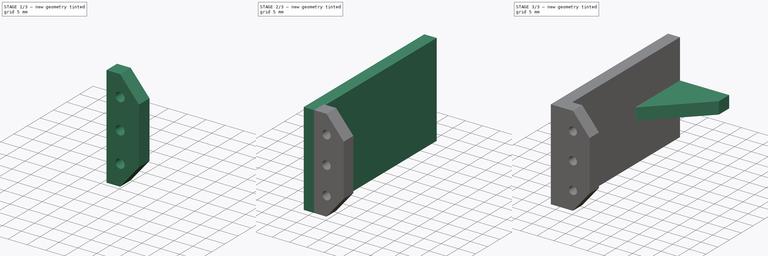
[diagram: build sequence overview — one tinted view per stage of 3, left to right]
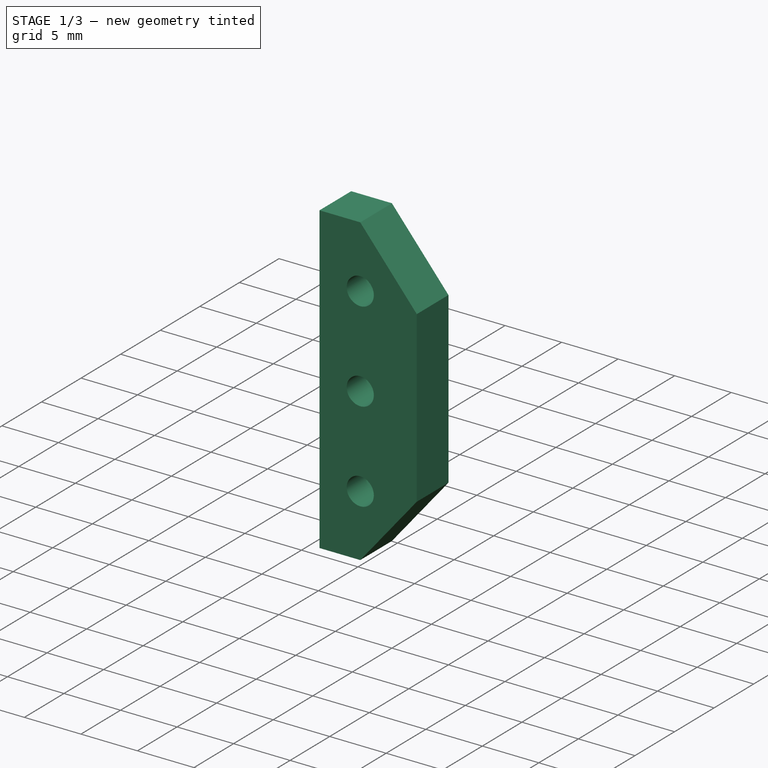
[diagram: stage 1 of 3 — iso view after this stage's code; geometry added in this stage tinted green]
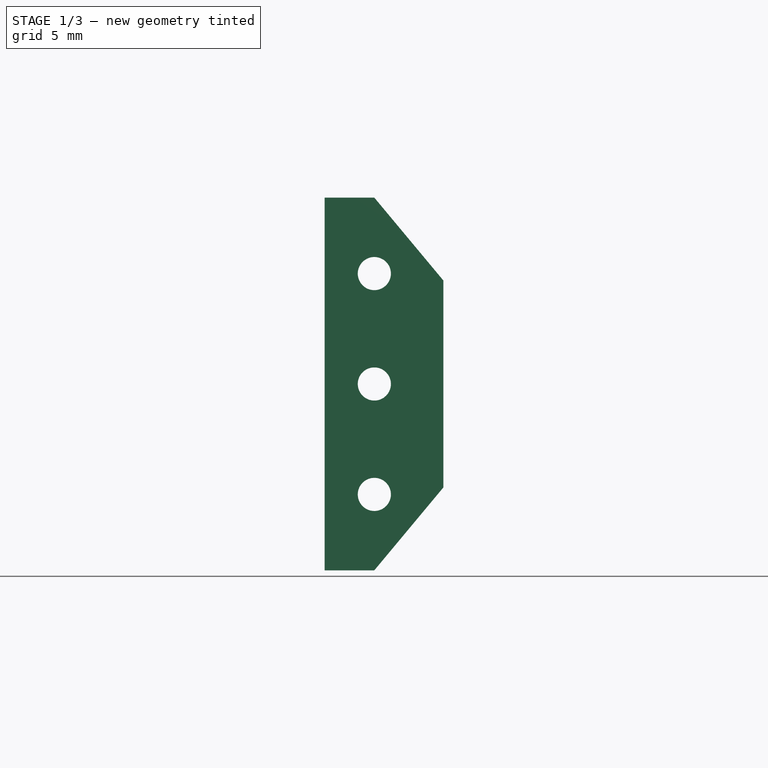
[diagram: stage 1 of 3 — front view after this stage's code; geometry added in this stage tinted green]
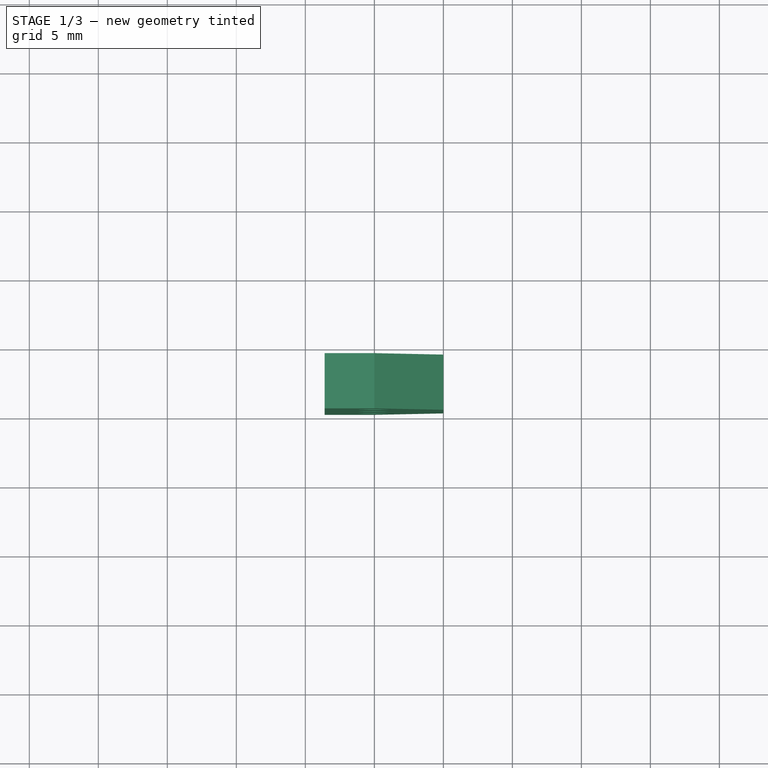
[diagram: stage 1 of 3 — top view after this stage's code; geometry added in this stage tinted green]
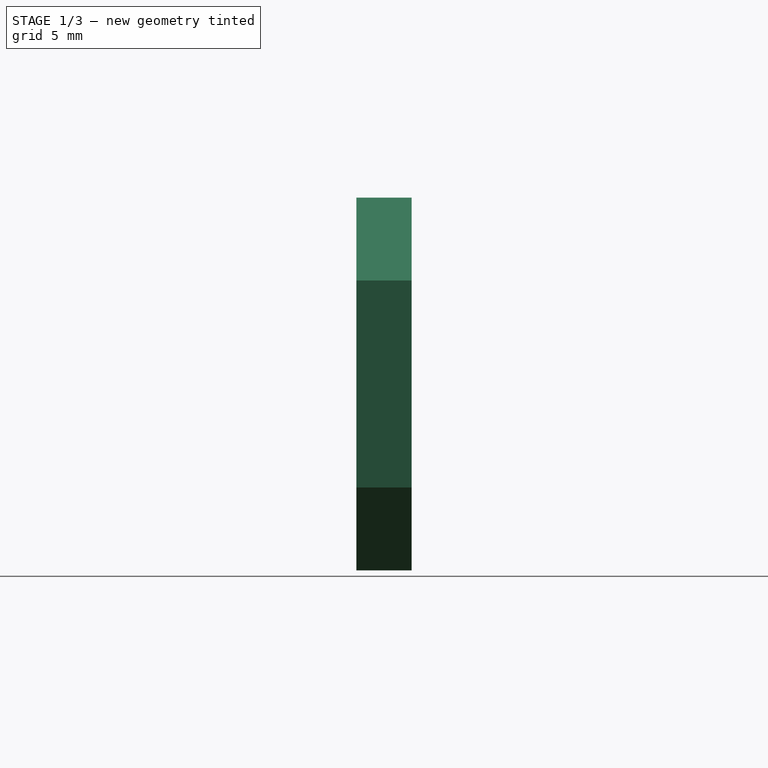
[diagram: stage 1 of 3 — right view after this stage's code; geometry added in this stage tinted green]
FCSTD DOCUMENT  (FreeCAD 1.0R39319 (Git))
Label: upper-rail-02
License: All rights reserved
LicenseURL: http://en.wikipedia.org/wiki/All_rights_reserved
objects: Sketcher::SketchObject×4, PartDesign::Pad×3, PartDesign::Hole×1, PartDesign::Chamfer×1, PartDesign::Body×1, App::Part×1
note: 24 computed .brp shape members not serialized (recipe doc carries the construction recipe); baked Part::Feature solids carry a one-line shape summary decoded from their .brp

FEATURE [Sketcher::SketchObject] Sketch003
  ArcFitTolerance = 1e-06
  FullyConstrained = true
  MakeInternals = false
  MapMode = 5
  Placement = pos=(0,190.288,-8.81e-14) rot=(-1,0,0;1.5708rad)
  sketch-geometry (7):
    g0: LineSegment StartX=-12 StartY=6 StartZ=0 EndX=-10 EndY=6 EndZ=0
    g1: LineSegment StartX=-10 StartY=6 StartZ=0 EndX=-5 EndY=0 EndZ=0
    g2: LineSegment StartX=-5 StartY=0 StartZ=0 EndX=-5 EndY=-15 EndZ=0
    g3: LineSegment StartX=-5 StartY=-15 StartZ=0 EndX=-10 EndY=-21 EndZ=0
    g4: LineSegment StartX=-10 StartY=-21 StartZ=0 EndX=-13.6 EndY=-21 EndZ=0
    g5: LineSegment StartX=-13.6 StartY=-21 StartZ=0 EndX=-13.6 EndY=6 EndZ=0
    g6: LineSegment StartX=-13.6 StartY=6 StartZ=0 EndX=-12 EndY=6 EndZ=0
  constraints (19):
    c: Coincident(g-3,g0)
    c: Coincident(g0,g-5)
    c: Coincident(g0,g1)
    c: Coincident(g1,g-5)
    c: Coincident(g1,g2)
    c: Coincident(g2,g-4)
    c: Coincident(g2,g3)
    c: Coincident(g3,g4)
    c: Coincident(g4,g-3)
    c: Coincident(g4,g5)
    c: Coincident(g5,g0)
    c: Coincident(g3,g-4)
    c: DistanceX(g4,g4) = 3.6
    c: Vertical(g5)
    c: Coincident(g6,g5)
    c: Coincident(g6,g0)
    c: Horizontal(g6)
    c: Horizontal(g4)
    c: DistanceY(g5,g5) = 27
FEATURE [PartDesign::Pad] Pad001
  Direction = (0,1,2e-16)
  Length = 4
  Length2 = 10
  Placement = pos=(0,190.288,-8.81e-14) rot=(-1,0,0;1.5708rad)
  Profile = -> Sketch003
  ReferenceAxis = -> Sketch003 [N_Axis]
  Suppressed = false
  Type = 0
FEATURE [Sketcher::SketchObject] Sketch004
  ArcFitTolerance = 1e-06
  AttachmentSupport = -> [Pad001]
  FullyConstrained = true
  MakeInternals = false
  MapMode = 5
  Placement = pos=(0,194.288,-8.81e-14) rot=(-1,0,0;1.5708rad)
  sketch-geometry (9):
    g0: LineSegment [constr] StartX=-12 StartY=6 StartZ=0 EndX=-10 EndY=6 EndZ=0
    g1: LineSegment [constr] StartX=-10 StartY=6 StartZ=0 EndX=-5 EndY=0 EndZ=0
    g2: LineSegment [constr] StartX=-5 StartY=0 StartZ=0 EndX=-5 EndY=-15 EndZ=0
    g3: LineSegment [constr] StartX=-5 StartY=-15 StartZ=0 EndX=-10 EndY=-21 EndZ=0
    g4: LineSegment [constr] StartX=-10 StartY=-21 StartZ=0 EndX=-12 EndY=-21 EndZ=0
    g5: LineSegment [constr] StartX=-12 StartY=-21 StartZ=0 EndX=-12 EndY=6 EndZ=0
    g6: Circle CenterX=-10 CenterY=0.5 CenterZ=0 NormalX=0 NormalY=0 NormalZ=1 AngleXU=0 Radius=0.8
    g7: Circle CenterX=-10 CenterY=-7.5 CenterZ=0 NormalX=0 NormalY=0 NormalZ=1 AngleXU=0 Radius=0.8
    g8: Circle CenterX=-10 CenterY=-15.5 CenterZ=0 NormalX=0 NormalY=0 NormalZ=1 AngleXU=0 Radius=0.8
  constraints (18):
    c: Coincident(g-3,g0)
    c: Coincident(g0,g-5)
    c: Coincident(g0,g1)
    c: Coincident(g1,g-5)
    c: Coincident(g1,g2)
    c: Coincident(g2,g-4)
    c: Coincident(g2,g3)
    c: Coincident(g3,g4)
    c: Coincident(g4,g-3)
    c: Coincident(g4,g5)
    c: Coincident(g5,g0)
    c: Coincident(g3,g-4)
    c: Coincident(g6,g-8)
    c: Equal(g6,g-8)
    c: Coincident(g7,g-6)
    c: Equal(g7,g-6)
    c: Coincident(g8,g-7)
    c: Equal(g8,g-7)
FEATURE [PartDesign::Hole] Hole
  BaseFeature = -> Pad001
  CustomThreadClearance = 0
  Depth = 25
  DepthType = 0
  Diameter = 2.4
  DrillForDepth = false
  DrillPoint = 1
  DrillPointAngle = 118
  HoleCutCountersinkAngle = 90
  HoleCutCustomValues = false
  HoleCutDepth = 1.6
  HoleCutDiameter = 4.3
  HoleCutType = 4
  ModelThread = false
  Placement = pos=(0,190.288,-8.81e-14) rot=(-1,0,0;1.5708rad)
  Profile = -> Sketch004
  Suppressed = false
  Tapered = false
  TaperedAngle = 90
  ThreadClass = 0
  ThreadDepth = 25
  ThreadDepthType = 0
  ThreadDirection = 0
  ThreadFit = 0
  ThreadSize = 6
  ThreadType = 1
  Threaded = false
  UseCustomThreadClearance = false
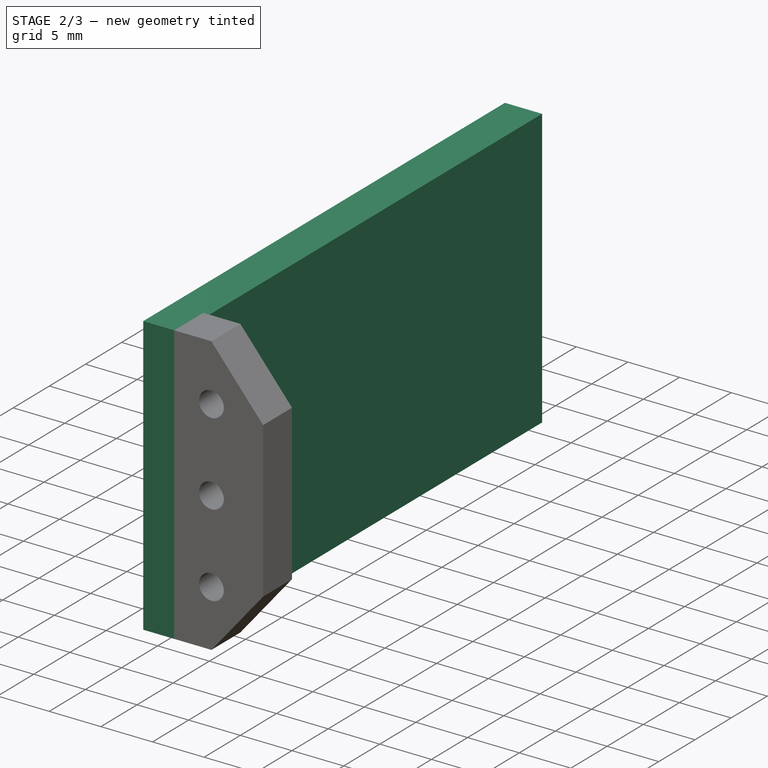
[diagram: stage 2 of 3 — iso view after this stage's code; geometry added in this stage tinted green]
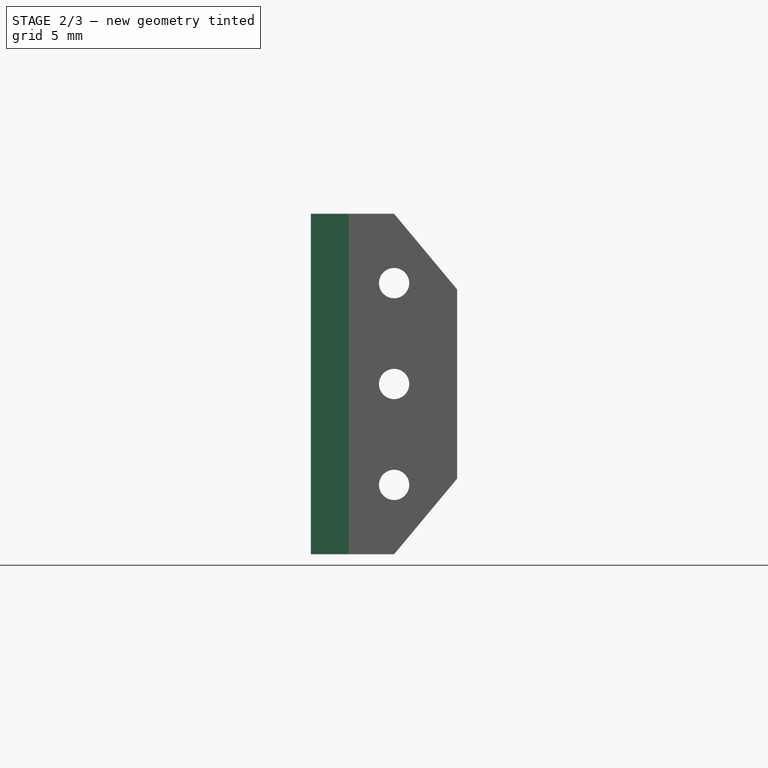
[diagram: stage 2 of 3 — front view after this stage's code; geometry added in this stage tinted green]
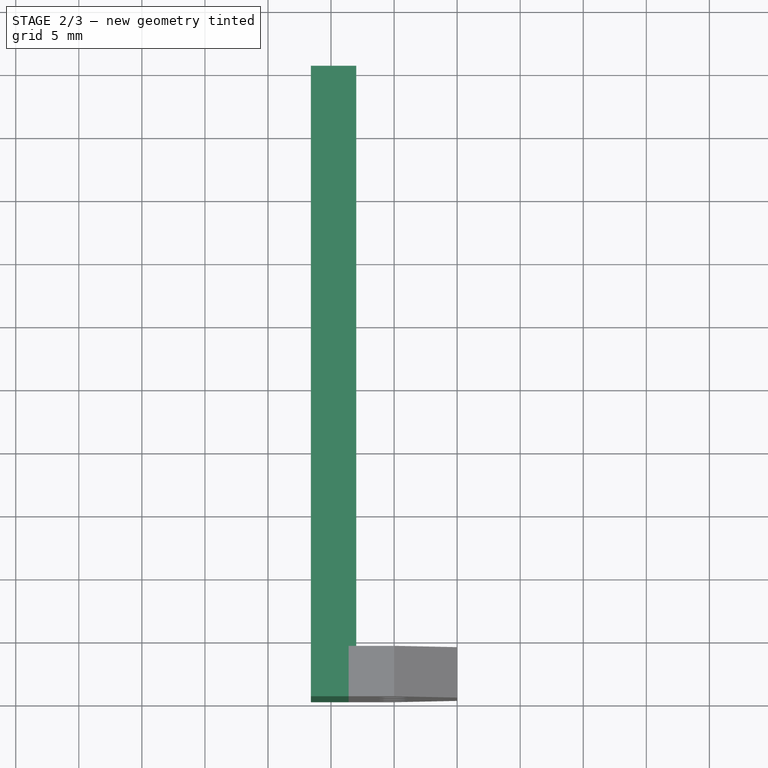
[diagram: stage 2 of 3 — top view after this stage's code; geometry added in this stage tinted green]
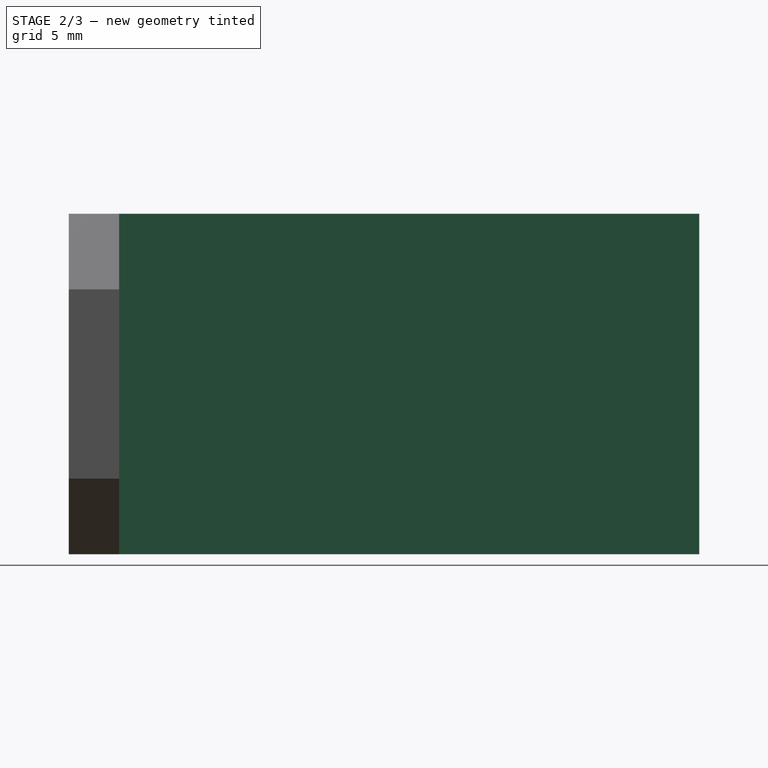
[diagram: stage 2 of 3 — right view after this stage's code; geometry added in this stage tinted green]
FEATURE [Sketcher::SketchObject] Sketch
  ArcFitTolerance = 1e-06
  AttachmentSupport = -> [Hole]
  ExternalGeometry = -> [Hole,Sketch003]
  FullyConstrained = true
  MakeInternals = false
  MapMode = 5
  Placement = pos=(-13,190.288,-8.81e-14) rot=(0,-1,0;1.5708rad)
  sketch-geometry (4):
    g0: LineSegment StartX=-6 StartY=0 StartZ=0 EndX=21 EndY=0 EndZ=0
    g1: LineSegment StartX=21 StartY=0 StartZ=0 EndX=21 EndY=50 EndZ=0
    g2: LineSegment StartX=21 StartY=50 StartZ=0 EndX=-6 EndY=50 EndZ=0
    g3: LineSegment StartX=-6 StartY=50 StartZ=0 EndX=-6 EndY=0 EndZ=0
  constraints (10):
    c: Coincident(g0,g1)
    c: Coincident(g1,g2)
    c: Coincident(g2,g3)
    c: Coincident(g3,g0)
    c: Horizontal(g2)
    c: Vertical(g1)
    c: Vertical(g3)
    c: Coincident(g0,g-4)
    c: Coincident(g0,g-4)
    c: DistanceY(g3,g3) = 50
FEATURE [PartDesign::Pad] Pad
  BaseFeature = -> Hole
  Direction = (-1,0,0)
  Length = 3.6
  Length2 = 10
  Placement = pos=(0,190.288,-8.81e-14) rot=(-1,0,0;1.5708rad)
  Profile = -> Sketch
  ReferenceAxis = -> Sketch [N_Axis]
  Suppressed = false
  Type = 0
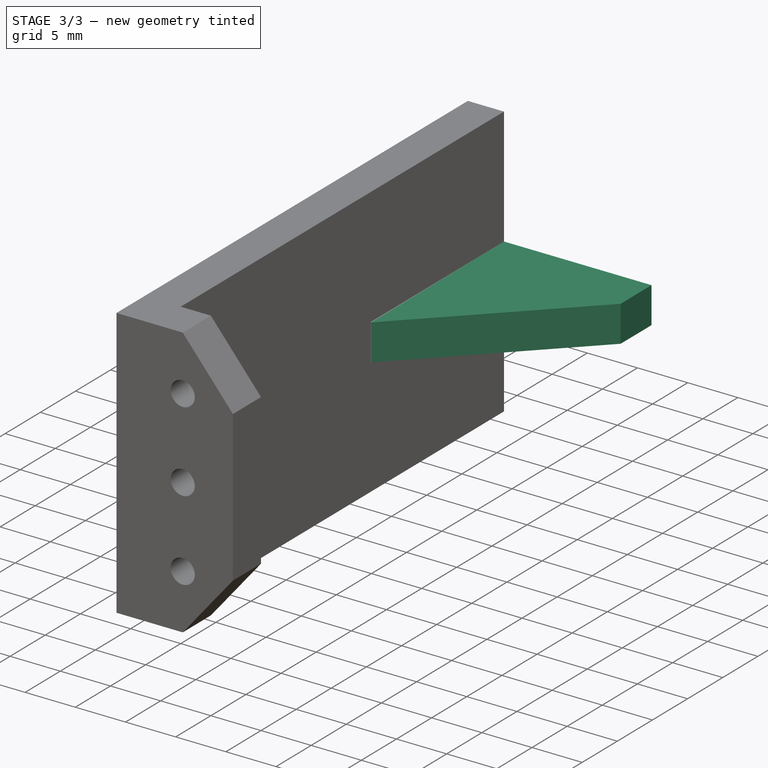
[diagram: stage 3 of 3 — iso view after this stage's code; geometry added in this stage tinted green]
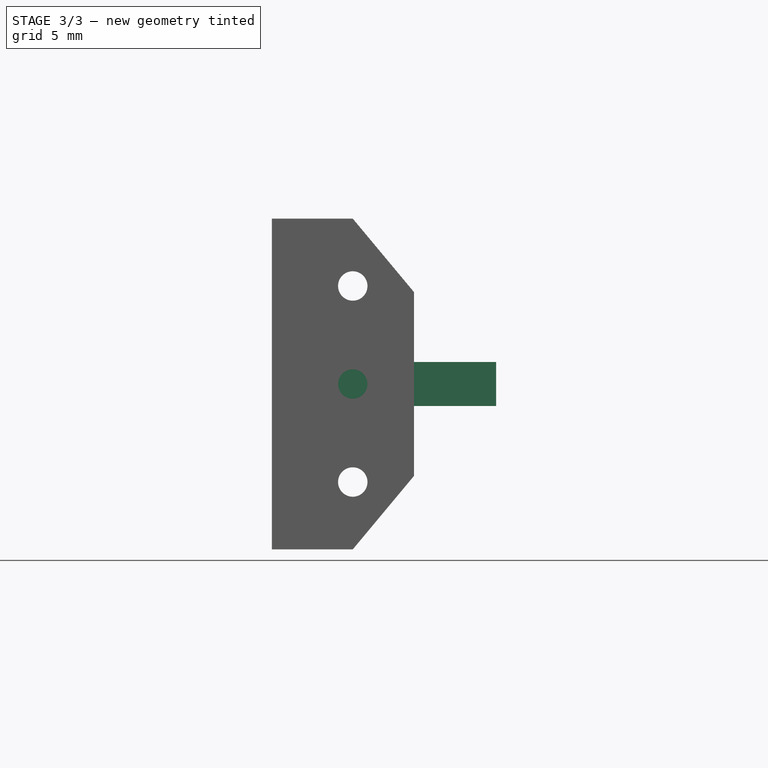
[diagram: stage 3 of 3 — front view after this stage's code; geometry added in this stage tinted green]
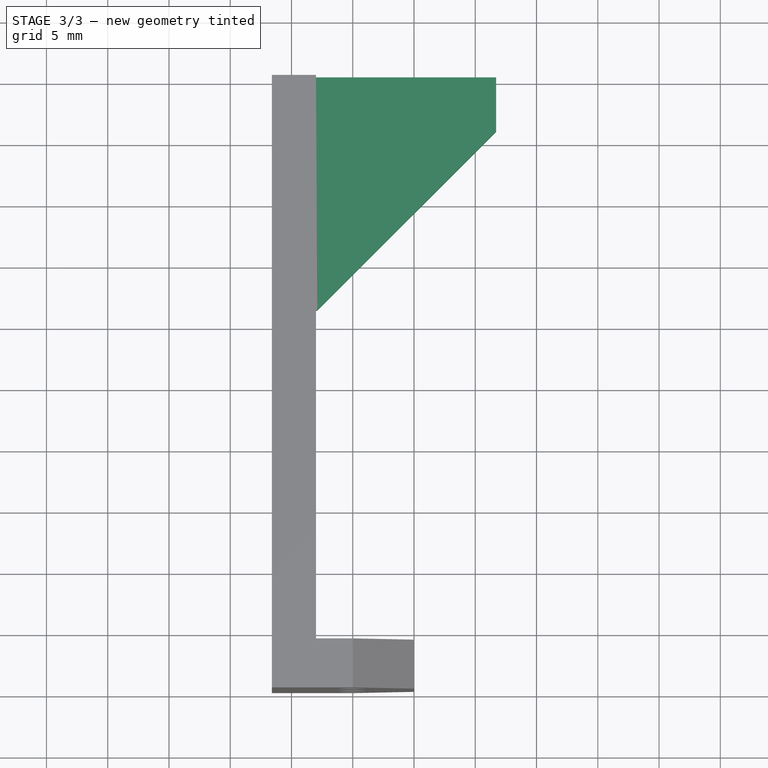
[diagram: stage 3 of 3 — top view after this stage's code; geometry added in this stage tinted green]
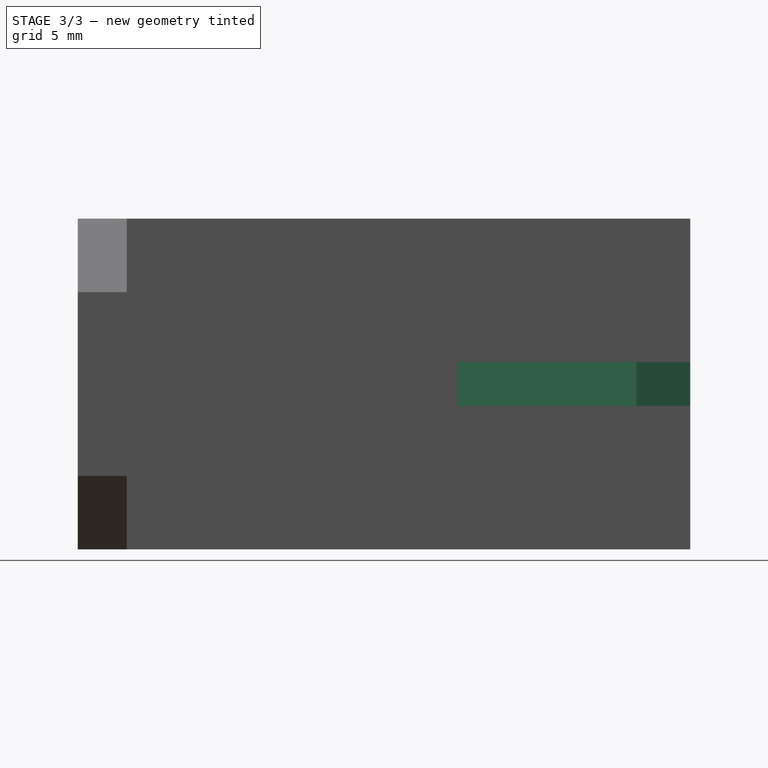
[diagram: stage 3 of 3 — right view after this stage's code; geometry added in this stage tinted green]
FEATURE [Sketcher::SketchObject] Sketch005
  ArcFitTolerance = 1e-06
  AttachmentSupport = -> [Pad]
  ExternalGeometry = -> [Pad]
  FullyConstrained = true
  MakeInternals = false
  MapMode = 5
  Placement = pos=(0,240.288,-9.36e-14) rot=(-1,0,0;1.5708rad)
  sketch-geometry (5):
    g0: LineSegment StartX=-13 StartY=-5.7 StartZ=0 EndX=-13 EndY=-9.3 EndZ=0
    g1: LineSegment StartX=-13 StartY=-9.3 StartZ=0 EndX=1.7 EndY=-9.3 EndZ=0
    g2: LineSegment StartX=1.7 StartY=-9.3 StartZ=0 EndX=1.7 EndY=-5.7 EndZ=0
    g3: LineSegment StartX=1.7 StartY=-5.7 StartZ=0 EndX=-13 EndY=-5.7 EndZ=0
    g4: GeomPoint X=-13 Y=-7.5 Z=0
  constraints (14):
    c: DistanceY(g-4,g-4) = 27
    c: DistanceX(g-5,g-5) = 3.6
    c: Coincident(g0,g1)
    c: Coincident(g1,g2)
    c: Coincident(g2,g3)
    c: Coincident(g3,g0)
    c: Vertical(g0)
    c: Vertical(g2)
    c: Horizontal(g1)
    c: Horizontal(g3)
    c: DistanceY(g2,g2) = 3.6
    c: DistanceX(g3,g3) = 14.7
    c: Symmetric(g0,g0,g4)
    c: Symmetric(g-5,g-6,g4)
FEATURE [PartDesign::Pad] Pad002
  BaseFeature = -> Pad
  Direction = (0,1,0)
  Length = 19
  Length2 = 10
  Placement = pos=(0,190.288,-8.81e-14) rot=(-1,0,0;1.5708rad)
  Profile = -> Sketch005
  ReferenceAxis = -> Sketch005 [N_Axis]
  Reversed = true
  Suppressed = false
  Type = 0
FEATURE [PartDesign::Chamfer] Chamfer
  Angle = 45
  Base = -> Pad002 [Edge66]
  BaseFeature = -> Pad002
  ChamferType = 0
  FlipDirection = false
  Placement = pos=(0,190.288,-8.81e-14) rot=(-1,0,0;1.5708rad)
  Size = 14.6
  Size2 = 1
  SupportTransform = false
  Suppressed = false
  UseAllEdges = false
FEATURE [PartDesign::Body] Body
  AllowCompound = false
  Group = -> [Sketch003,Pad001,Sketch004,Hole,Sketch,Pad,Sketch005,Pad002,Chamfer]
  Origin = -> Origin001
  Tip = -> Chamfer
FEATURE [App::Part] Part
  Group = -> [Body]
  Origin = -> Origin
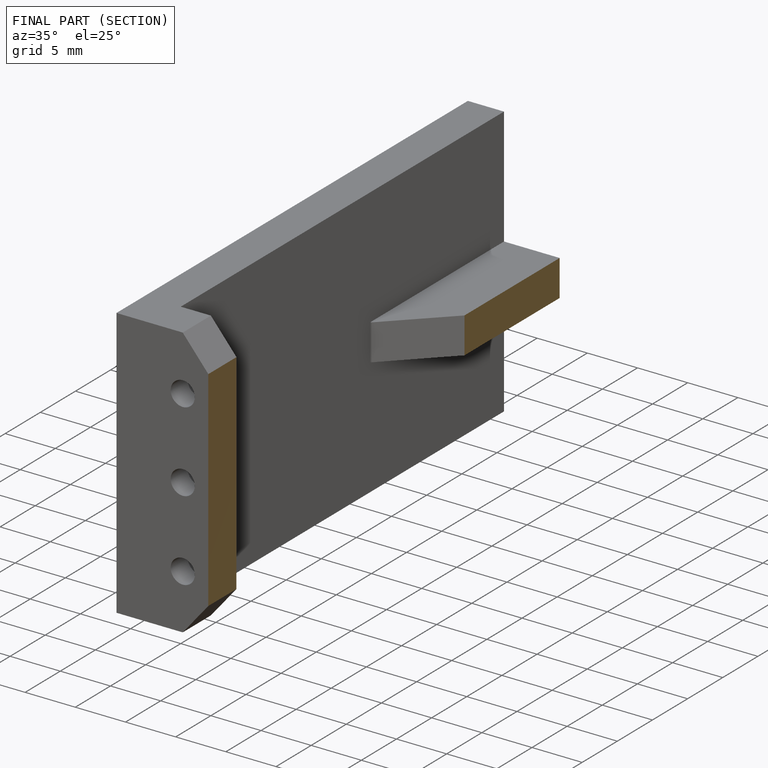
[diagram: finished part — half-section view (interior)]
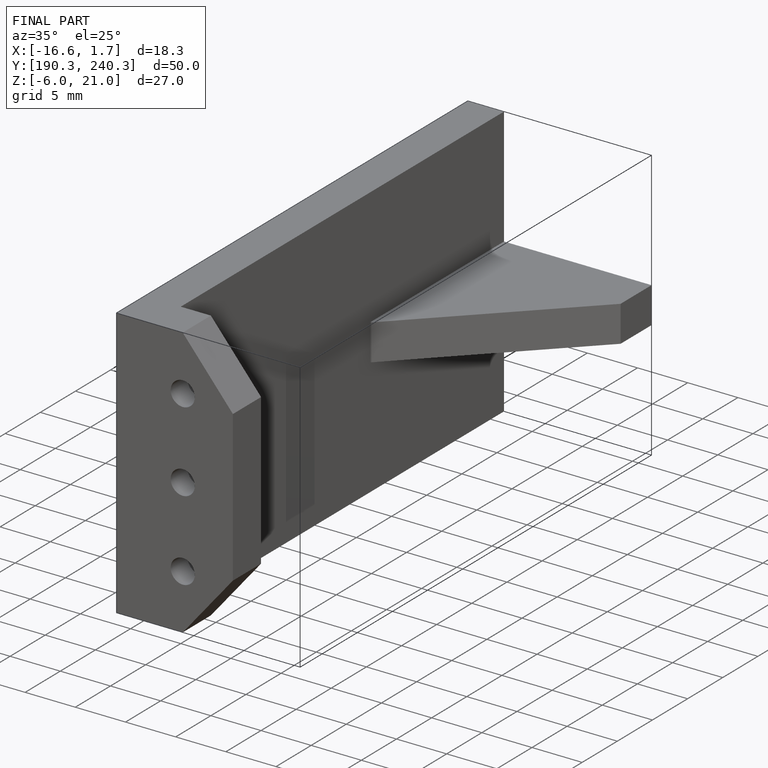
[diagram: finished part — iso view with bounding-box wireframe]
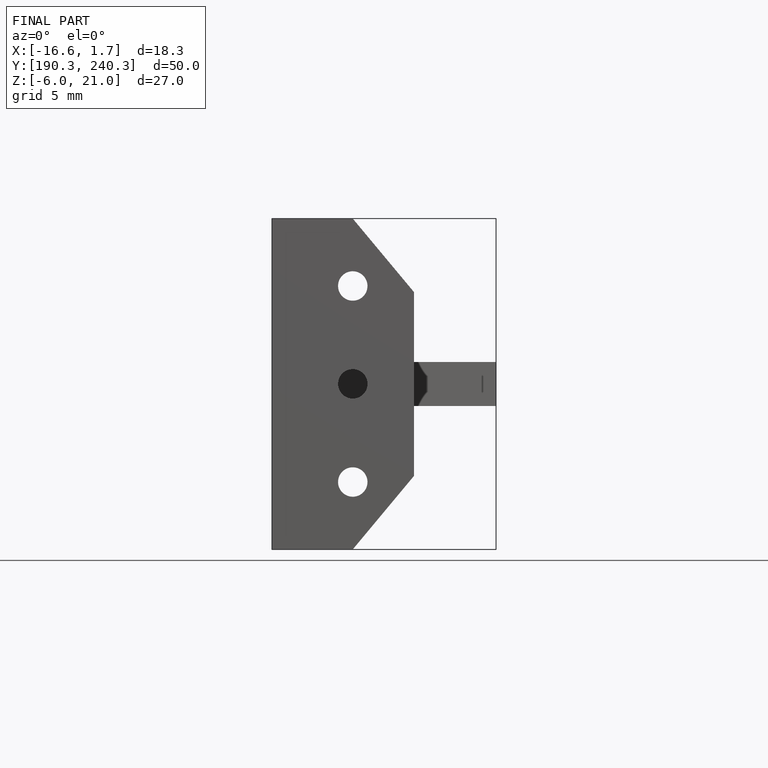
[diagram: finished part — front view with bounding-box wireframe]
